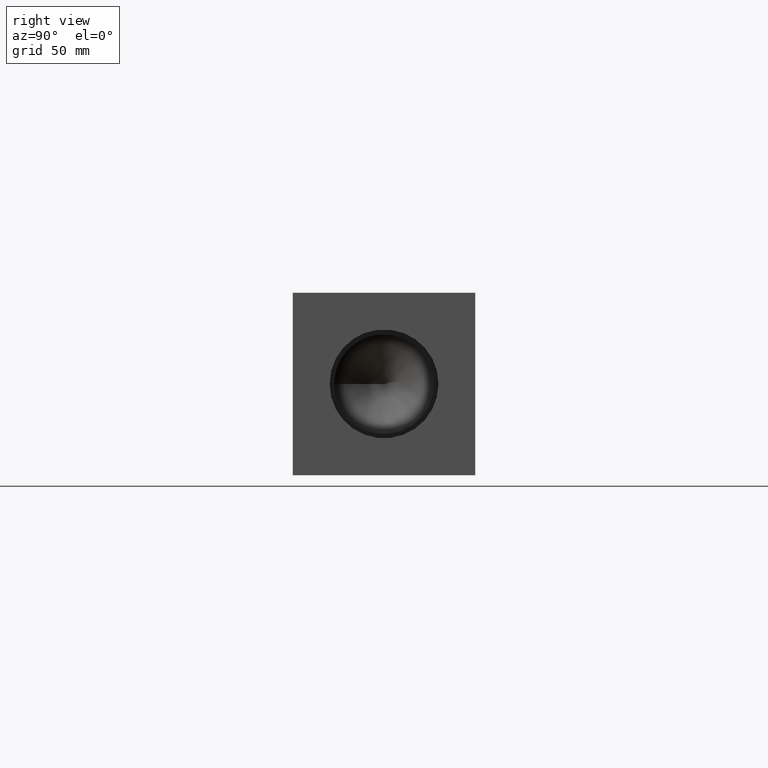
[diagram: clean part render]
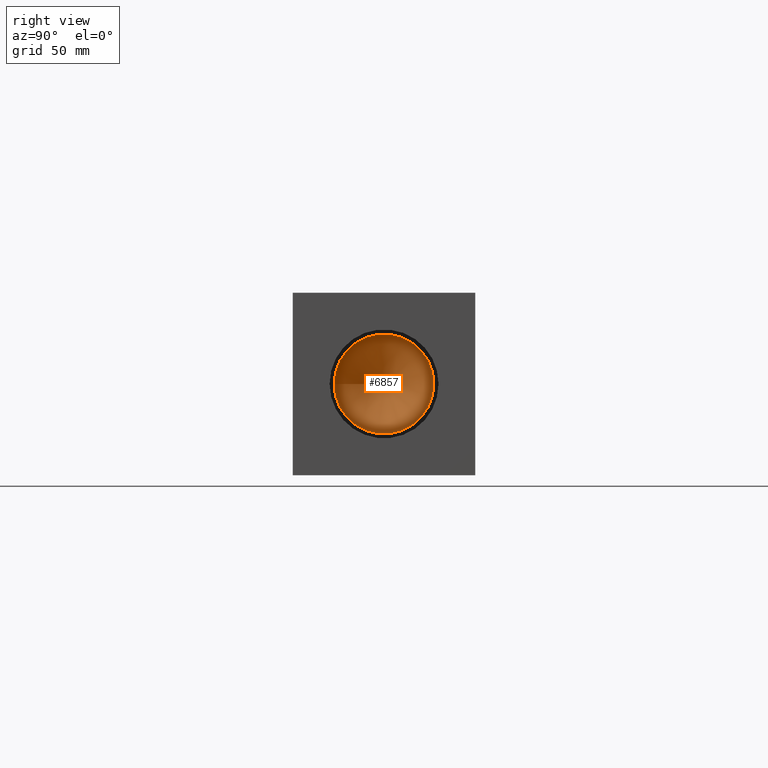
[diagram: same view with one face highlighted and labeled with its STEP entity id]
A machine part, right view. The second image highlights one B-rep face of the part: STEP entity #6857.
In plain terms, the highlighted conical surface has half-angle 60 deg.
Its self-contained STEP definition (entity closure, byte-faithful):
#17=CONICAL_SURFACE('',#7163,13.8938,1.0471975511966);
#78=CIRCLE('',#7164,27.7876);
#79=CIRCLE('',#7165,27.7876);
#697=FACE_OUTER_BOUND('',#1078,.T.);
#1078=EDGE_LOOP('',(#6058,#6059,#6060,#6061));
#1784=LINE('',#11581,#2480);
#2480=VECTOR('',#8435,13.8938);
#3292=VERTEX_POINT('',#11577);
#3293=VERTEX_POINT('',#11578);
#3294=VERTEX_POINT('',#11580);
#4223=EDGE_CURVE('',#3292,#3293,#78,.T.);
#4224=EDGE_CURVE('',#3293,#3294,#1784,.T.);
#4225=EDGE_CURVE('',#3293,#3292,#79,.T.);
#6058=ORIENTED_EDGE('',*,*,#4223,.T.);
#6059=ORIENTED_EDGE('',*,*,#4224,.T.);
#6060=ORIENTED_EDGE('',*,*,#4224,.F.);
#6061=ORIENTED_EDGE('',*,*,#4225,.T.);
#6857=ADVANCED_FACE('',(#697),#17,.F.);
#7163=AXIS2_PLACEMENT_3D('',#11576,#8431,#8432);
#7164=AXIS2_PLACEMENT_3D('',#11579,#8433,#8434);
#7165=AXIS2_PLACEMENT_3D('',#11582,#8436,#8437);
#8431=DIRECTION('center_axis',(1.,0.,0.));
#8432=DIRECTION('ref_axis',(0.,1.,0.));
#8433=DIRECTION('center_axis',(1.,0.,0.));
#8434=DIRECTION('ref_axis',(0.,1.,0.));
#8435=DIRECTION('',(-0.5,0.866025403784439,1.06057523872491E-16));
#8436=DIRECTION('center_axis',(1.,0.,0.));
#8437=DIRECTION('ref_axis',(0.,1.,0.));
#11576=CARTESIAN_POINT('Origin',(351.460490829933,50.8,50.8));
#11577=CARTESIAN_POINT('',(359.48208,78.5876,50.8));
#11578=CARTESIAN_POINT('',(359.48208,23.0124,50.8));
#11579=CARTESIAN_POINT('Origin',(359.48208,50.8,50.8));
#11580=CARTESIAN_POINT('',(343.438901659866,50.8,50.8));
#11581=CARTESIAN_POINT('',(351.460490829933,36.9062,50.8));
#11582=CARTESIAN_POINT('Origin',(359.48208,50.8,50.8));